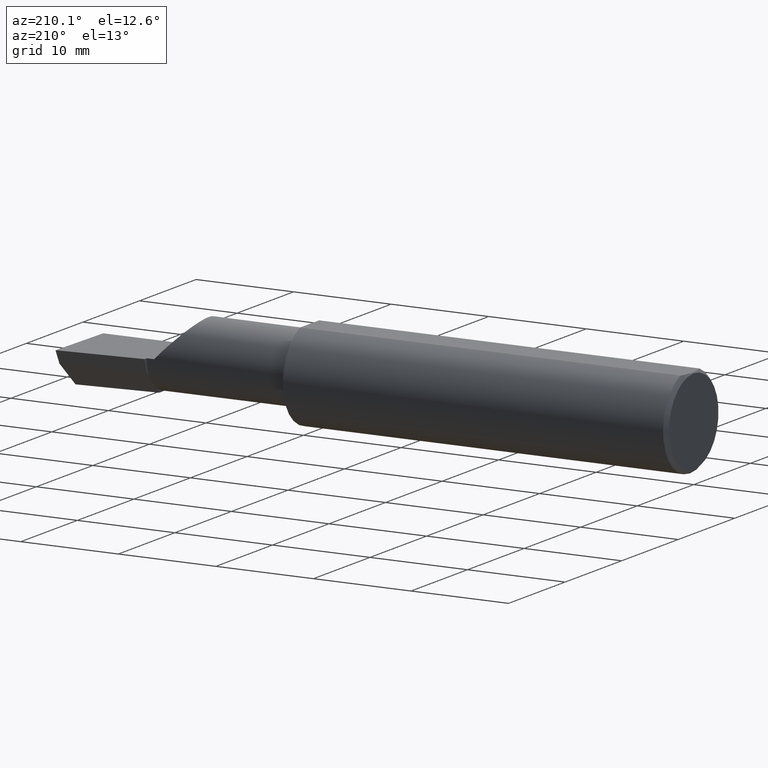
[diagram: clean part render]
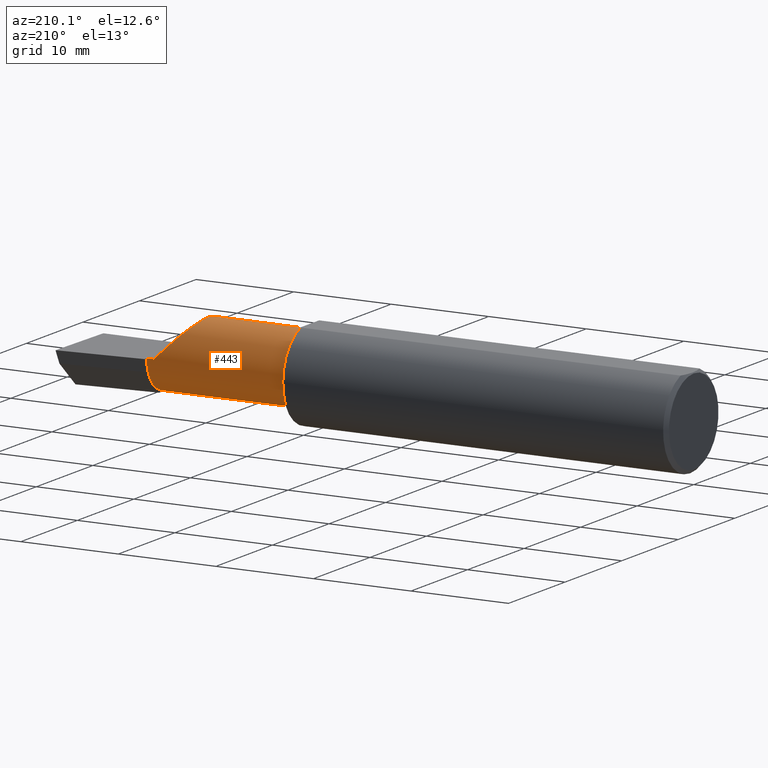
[diagram: same view with one face highlighted and labeled with its STEP entity id]
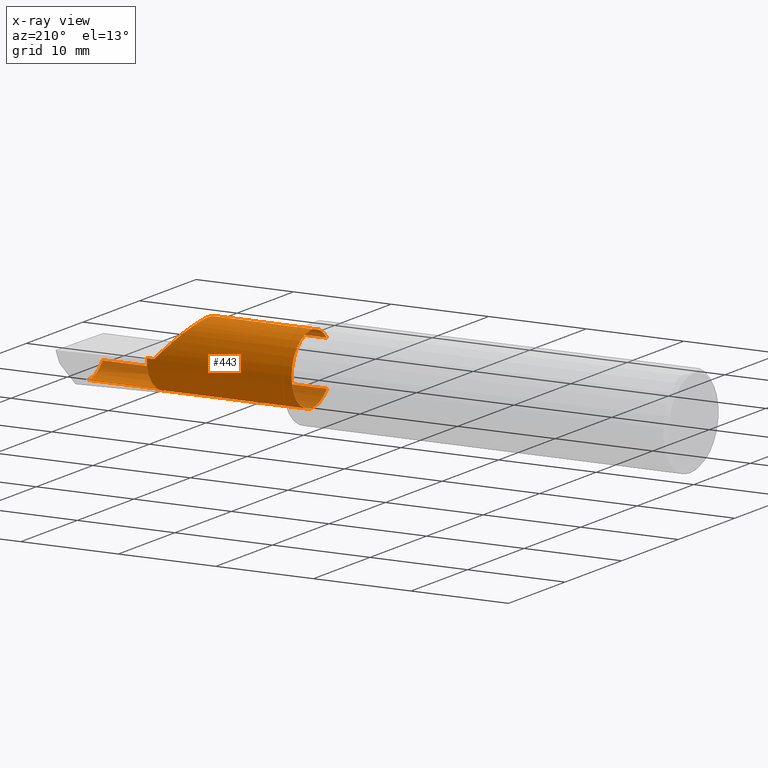
[diagram: x-ray of the same camera — body ghosted, the highlighted face saturated]
A machine part, auxiliary view. The second image highlights one B-rep face of the part: STEP entity #443.
The next image is the same camera in x-ray: the body ghosted, the highlighted face saturated — about 9% of this face is hidden behind the body in this view.
In plain terms, the highlighted cylindrical surface (partial cylindrical patch) has radius 3.5573 mm, axis along (-1, -0, -0).
Its self-contained STEP definition (entity closure, byte-faithful):
#4 = CARTESIAN_POINT ( 'NONE',  ( 0.000000000000000000, -0.05740000000000001351, 0.000000000000000000 ) ) ;
#16 = VERTEX_POINT ( 'NONE', #43 ) ;
#18 = CARTESIAN_POINT ( 'NONE',  ( 2.038695632261437130, -0.1635956445993029529, 0.09130436773856188959 ) ) ;
#27 = DIRECTION ( 'NONE',  ( 0.000000000000000000, -1.000000000000000000, 0.000000000000000000 ) ) ;
#28 = ORIENTED_EDGE ( 'NONE', *, *, #522, .T. ) ;
#31 = CARTESIAN_POINT ( 'NONE',  ( 2.500000000000000000, -0.05739999999999999963, -0.1400500000000000633 ) ) ;
#40 = EDGE_CURVE ( 'NONE', #158, #567, #412, .T. ) ;
#43 = CARTESIAN_POINT ( 'NONE',  ( 2.160000000000000142, 0.01441505128072300204, -0.1202356058309979880 ) ) ;
#47 = DIRECTION ( 'NONE',  ( 6.829619984160658816E-18, -1.000000000000000000, 0.000000000000000000 ) ) ;
#64 = CARTESIAN_POINT ( 'NONE',  ( 1.574999999999999956, -0.05740000000000000657, 0.000000000000000000 ) ) ;
#73 = CARTESIAN_POINT ( 'NONE',  ( 2.477873865042410806, -0.05739999999999999963, -0.1400500000000000633 ) ) ;
#81 = ORIENTED_EDGE ( 'NONE', *, *, #288, .F. ) ;
#84 = LINE ( 'NONE', #31, #162 ) ;
#87 = CARTESIAN_POINT ( 'NONE',  ( 1.574999999999999956, -0.1635956445993029529, -0.09130436773856180632 ) ) ;
#88 = EDGE_CURVE ( 'NONE', #426, #281, #580, .T. ) ;
#91 = CARTESIAN_POINT ( 'NONE',  ( 2.038695632261437130, -0.1635956445993029529, 0.09130436773856188959 ) ) ;
#94 = CYLINDRICAL_SURFACE ( 'NONE', #427, 0.1400499999999999801 ) ;
#101 = CARTESIAN_POINT ( 'NONE',  ( 1.574999999999999956, -0.1635956445993027031, 0.09130436773856204224 ) ) ;
#108 = LINE ( 'NONE', #454, #315 ) ;
#124 = VERTEX_POINT ( 'NONE', #18 ) ;
#133 = VERTEX_POINT ( 'NONE', #73 ) ;
#150 = DIRECTION ( 'NONE',  ( 0.000000000000000000, -1.000000000000000000, 0.000000000000000000 ) ) ;
#158 = VERTEX_POINT ( 'NONE', #453 ) ;
#162 = VECTOR ( 'NONE', #243, 39.37007874015748143 ) ;
#167 = CARTESIAN_POINT ( 'NONE',  ( 2.160000000000000142, -0.05739999999999999963, 0.000000000000000000 ) ) ;
#173 = DIRECTION ( 'NONE',  ( 1.000000000000000000, 6.829619984160658046E-18, 0.000000000000000000 ) ) ;
#183 = CIRCLE ( 'NONE', #466, 0.1400500000000000356 ) ;
#198 = CARTESIAN_POINT ( 'NONE',  ( 2.160000000000000142, -0.05739999999999999963, -0.1400500000000000633 ) ) ;
#199 = CARTESIAN_POINT ( 'NONE',  ( 2.160000000000000142, 0.06495571228477943493, -0.06814016562413294231 ) ) ;
#204 = DIRECTION ( 'NONE',  ( -1.000000000000000000, -6.829619984160658046E-18, -0.000000000000000000 ) ) ;
#206 = DIRECTION ( 'NONE',  ( -1.000000000000000000, -6.829619984160658046E-18, -0.000000000000000000 ) ) ;
#209 = CARTESIAN_POINT ( 'NONE',  ( -9.564882787816662316E-19, 0.08264999999999995961, 3.267291166268304703E-16 ) ) ;
#211 =( BOUNDED_CURVE ( )  B_SPLINE_CURVE ( 3, ( #561, #425, #323, #612 ),
 .UNSPECIFIED., .F., .T. ) 
 B_SPLINE_CURVE_WITH_KNOTS ( ( 4, 4 ),
 ( 5.632580117768154260, 6.493234751459282528 ),
 .UNSPECIFIED. ) 
 CURVE ( )  GEOMETRIC_REPRESENTATION_ITEM ( )  RATIONAL_B_SPLINE_CURVE ( ( 1.000000000000000000, 0.9392195014330942948, 0.9392195014330942948, 1.000000000000000000 ) ) 
 REPRESENTATION_ITEM ( '' )  );
#219 = EDGE_CURVE ( 'NONE', #16, #416, #241, .T. ) ;
#220 = DIRECTION ( 'NONE',  ( 0.000000000000000000, -1.000000000000000000, 0.000000000000000000 ) ) ;
#226 = EDGE_LOOP ( 'NONE', ( #81, #460, #520, #28, #610, #284, #306, #400, #531, #296 ) ) ;
#241 = CIRCLE ( 'NONE', #289, 0.1400499999999999801 ) ;
#243 = DIRECTION ( 'NONE',  ( -1.000000000000000000, 5.691349986800549142E-18, -0.000000000000000000 ) ) ;
#250 = CIRCLE ( 'NONE', #591, 0.1400500000000000356 ) ;
#281 = VERTEX_POINT ( 'NONE', #87 ) ;
#282 = EDGE_CURVE ( 'NONE', #124, #158, #347, .T. ) ;
#283 = DIRECTION ( 'NONE',  ( 1.000000000000000000, 6.829619984160658046E-18, 0.000000000000000000 ) ) ;
#284 = ORIENTED_EDGE ( 'NONE', *, *, #40, .T. ) ;
#288 = EDGE_CURVE ( 'NONE', #379, #133, #211, .T. ) ;
#289 = AXIS2_PLACEMENT_3D ( 'NONE', #333, #283, #27 ) ;
#292 = CARTESIAN_POINT ( 'NONE',  ( 1.921229036482944075, -0.06260079402492431389, 0.2087709635170537925 ) ) ;
#296 = ORIENTED_EDGE ( 'NONE', *, *, #332, .F. ) ;
#297 = FACE_OUTER_BOUND ( 'NONE', #226, .T. ) ;
#306 = ORIENTED_EDGE ( 'NONE', *, *, #581, .T. ) ;
#312 = DIRECTION ( 'NONE',  ( 0.000000000000000000, -1.000000000000000000, 0.000000000000000000 ) ) ;
#314 = VECTOR ( 'NONE', #598, 39.37007874015748143 ) ;
#315 = VECTOR ( 'NONE', #320, 39.37007874015748143 ) ;
#320 = DIRECTION ( 'NONE',  ( -1.000000000000000000, -6.829619984160658046E-18, -0.000000000000000000 ) ) ;
#323 = CARTESIAN_POINT ( 'NONE',  ( 2.476787929832031221, -0.09887019258091189755, -0.1400500000000000078 ) ) ;
#332 = EDGE_CURVE ( 'NONE', #133, #355, #84, .T. ) ;
#333 = CARTESIAN_POINT ( 'NONE',  ( 2.160000000000000142, -0.05739999999999999963, 0.000000000000000000 ) ) ;
#347 =( BOUNDED_CURVE ( )  B_SPLINE_CURVE ( 3, ( #91, #292, #373, #559 ),
 .UNSPECIFIED., .F., .F. ) 
 B_SPLINE_CURVE_WITH_KNOTS ( ( 4, 4 ),
 ( 5.422530673488458852, 7.853981633974482790 ),
 .UNSPECIFIED. ) 
 CURVE ( )  GEOMETRIC_REPRESENTATION_ITEM ( )  RATIONAL_B_SPLINE_CURVE ( ( 1.000000000000000000, 0.5651045289226863666, 0.5651045289226863666, 1.000000000000000000 ) ) 
 REPRESENTATION_ITEM ( '' )  );
#348 = CARTESIAN_POINT ( 'NONE',  ( 2.160000000000000142, -0.05739999999999999963, 0.000000000000000000 ) ) ;
#355 = VERTEX_POINT ( 'NONE', #198 ) ;
#362 = DIRECTION ( 'NONE',  ( -1.000000000000000000, -6.829619984160658046E-18, -0.000000000000000000 ) ) ;
#364 = CARTESIAN_POINT ( 'NONE',  ( 1.867500000000000160, -0.1635956445993030639, 0.09130436773856169530 ) ) ;
#373 = CARTESIAN_POINT ( 'NONE',  ( 1.975085956200449022, 0.08264999999999997349, 0.1549140437995493169 ) ) ;
#379 = VERTEX_POINT ( 'NONE', #442 ) ;
#400 = ORIENTED_EDGE ( 'NONE', *, *, #219, .F. ) ;
#407 = EDGE_CURVE ( 'NONE', #16, #355, #183, .T. ) ;
#412 = LINE ( 'NONE', #209, #314 ) ;
#416 = VERTEX_POINT ( 'NONE', #199 ) ;
#425 = CARTESIAN_POINT ( 'NONE',  ( 2.477925907309857401, -0.1365595166907236646, -0.1227499502647107360 ) ) ;
#426 = VERTEX_POINT ( 'NONE', #101 ) ;
#427 = AXIS2_PLACEMENT_3D ( 'NONE', #4, #204, #47 ) ;
#442 = CARTESIAN_POINT ( 'NONE',  ( 2.481080296960508580, -0.1635956445993030639, -0.09130436773856169530 ) ) ;
#443 = ADVANCED_FACE ( 'NONE', ( #297 ), #94, .T. ) ;
#453 = CARTESIAN_POINT ( 'NONE',  ( 2.129999999999999893, 0.08264999999999983471, 1.065442715258197396E-16 ) ) ;
#454 = CARTESIAN_POINT ( 'NONE',  ( 1.867500000000000160, -0.1635956445993030639, -0.09130436773856169530 ) ) ;
#460 = ORIENTED_EDGE ( 'NONE', *, *, #493, .T. ) ;
#466 = AXIS2_PLACEMENT_3D ( 'NONE', #348, #579, #150 ) ;
#493 = EDGE_CURVE ( 'NONE', #379, #281, #108, .T. ) ;
#494 = AXIS2_PLACEMENT_3D ( 'NONE', #64, #362, #220 ) ;
#501 = CARTESIAN_POINT ( 'NONE',  ( 2.160000000000000142, 0.08265000000000004288, 3.267291166268306182E-16 ) ) ;
#520 = ORIENTED_EDGE ( 'NONE', *, *, #88, .F. ) ;
#522 = EDGE_CURVE ( 'NONE', #426, #124, #556, .T. ) ;
#531 = ORIENTED_EDGE ( 'NONE', *, *, #407, .T. ) ;
#556 = LINE ( 'NONE', #364, #573 ) ;
#559 = CARTESIAN_POINT ( 'NONE',  ( 2.129999999999999893, 0.08264999999999983471, 1.065442715258197396E-16 ) ) ;
#561 = CARTESIAN_POINT ( 'NONE',  ( 2.481080296960508580, -0.1635956445993030639, -0.09130436773856169530 ) ) ;
#567 = VERTEX_POINT ( 'NONE', #501 ) ;
#573 = VECTOR ( 'NONE', #173, 39.37007874015748143 ) ;
#579 = DIRECTION ( 'NONE',  ( -1.000000000000000000, -6.829619984160658046E-18, -0.000000000000000000 ) ) ;
#580 = CIRCLE ( 'NONE', #494, 0.1400499999999999523 ) ;
#581 = EDGE_CURVE ( 'NONE', #567, #416, #250, .T. ) ;
#591 = AXIS2_PLACEMENT_3D ( 'NONE', #167, #206, #312 ) ;
#598 = DIRECTION ( 'NONE',  ( 1.000000000000000000, 6.829619984160658046E-18, 0.000000000000000000 ) ) ;
#610 = ORIENTED_EDGE ( 'NONE', *, *, #282, .T. ) ;
#612 = CARTESIAN_POINT ( 'NONE',  ( 2.477873865042410806, -0.05739999999999999963, -0.1400500000000000633 ) ) ;